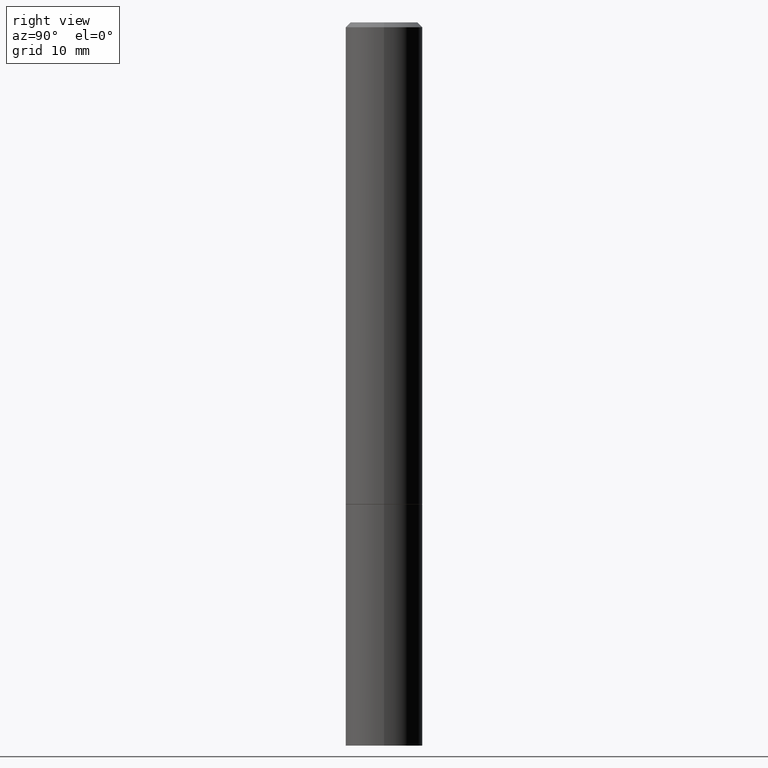
[diagram: clean part render]
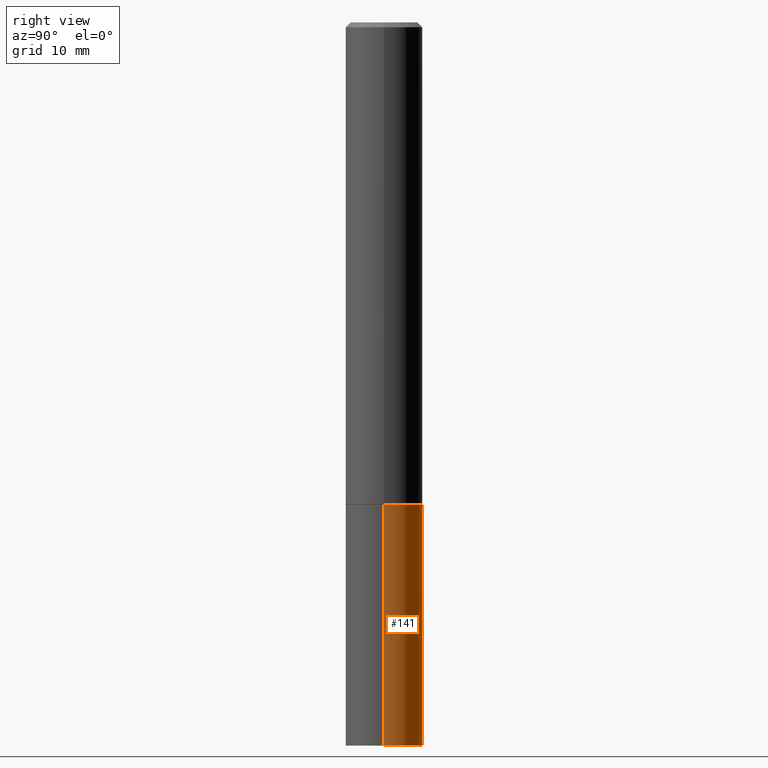
[diagram: same view with one face highlighted and labeled with its STEP entity id]
A machine part, right view. The second image highlights one B-rep face of the part: STEP entity #141.
In plain terms, the highlighted cylindrical surface (partial cylindrical patch) has radius 4.0005 mm, axis along (-0, 0, 1).
Its self-contained STEP definition (entity closure, byte-faithful):
#6 = CARTESIAN_POINT ( 'NONE',  ( 4.813905344975440714E-29, -6.872981015512730918E-15, -1.968499999999999694 ) ) ;
#10 = CARTESIAN_POINT ( 'NONE',  ( 7.220980290903470182E-29, -1.030964609733603853E-14, -2.952799999999999869 ) ) ;
#18 = EDGE_CURVE ( 'NONE', #97, #140, #229, .T. ) ;
#27 = EDGE_CURVE ( 'NONE', #330, #140, #115, .T. ) ;
#34 = CYLINDRICAL_SURFACE ( 'NONE', #288, 0.1575000000000000011 ) ;
#69 = ORIENTED_EDGE ( 'NONE', *, *, #27, .F. ) ;
#71 = LINE ( 'NONE', #148, #335 ) ;
#86 = AXIS2_PLACEMENT_3D ( 'NONE', #6, #253, #282 ) ;
#91 = CIRCLE ( 'NONE', #235, 0.1575000000000000011 ) ;
#93 = EDGE_CURVE ( 'NONE', #159, #330, #71, .T. ) ;
#97 = VERTEX_POINT ( 'NONE', #350 ) ;
#115 = CIRCLE ( 'NONE', #86, 0.1575000000000000011 ) ;
#140 = VERTEX_POINT ( 'NONE', #300 ) ;
#141 = ADVANCED_FACE ( 'NONE', ( #153 ), #34, .T. ) ;
#148 = CARTESIAN_POINT ( 'NONE',  ( 0.1575000000000000011, -1.099816621735586889E-15, 7.679978421878598033E-30 ) ) ;
#153 = FACE_OUTER_BOUND ( 'NONE', #348, .T. ) ;
#159 = VERTEX_POINT ( 'NONE', #303 ) ;
#203 = ORIENTED_EDGE ( 'NONE', *, *, #361, .T. ) ;
#206 = DIRECTION ( 'NONE',  ( -2.445468806185136597E-29, 3.491481338843145583E-15, 1.000000000000000000 ) ) ;
#217 = VECTOR ( 'NONE', #254, 39.37007874015748143 ) ;
#229 = LINE ( 'NONE', #318, #217 ) ;
#232 = DIRECTION ( 'NONE',  ( -2.445468806185136597E-29, 3.491481338843145583E-15, 1.000000000000000000 ) ) ;
#235 = AXIS2_PLACEMENT_3D ( 'NONE', #10, #206, #331 ) ;
#241 = DIRECTION ( 'NONE',  ( 1.000000000000000000, -6.982962677686265922E-15, 4.876176775795935232E-29 ) ) ;
#253 = DIRECTION ( 'NONE',  ( -2.445468806185136597E-29, 3.491481338843145583E-15, 1.000000000000000000 ) ) ;
#254 = DIRECTION ( 'NONE',  ( -2.445468806185136877E-29, 3.491481338843145188E-15, 1.000000000000000000 ) ) ;
#265 = ORIENTED_EDGE ( 'NONE', *, *, #93, .F. ) ;
#271 = ORIENTED_EDGE ( 'NONE', *, *, #18, .T. ) ;
#282 = DIRECTION ( 'NONE',  ( 1.000000000000000000, -6.982962677686268288E-15, 0.000000000000000000 ) ) ;
#288 = AXIS2_PLACEMENT_3D ( 'NONE', #359, #232, #241 ) ;
#300 = CARTESIAN_POINT ( 'NONE',  ( -0.1575000000000000011, -7.472208747602227514E-15, -1.968499999999999694 ) ) ;
#303 = CARTESIAN_POINT ( 'NONE',  ( 0.1575000000000000011, -1.140946271907162522E-14, -2.952799999999999869 ) ) ;
#318 = CARTESIAN_POINT ( 'NONE',  ( -0.1575000000000000011, 1.119104808822157801E-15, -7.747322767151475583E-30 ) ) ;
#330 = VERTEX_POINT ( 'NONE', #339 ) ;
#331 = DIRECTION ( 'NONE',  ( 1.000000000000000000, -6.982962677686261977E-15, 0.000000000000000000 ) ) ;
#335 = VECTOR ( 'NONE', #354, 39.37007874015748143 ) ;
#339 = CARTESIAN_POINT ( 'NONE',  ( 0.1575000000000000011, -7.972797637248318399E-15, -1.968499999999999694 ) ) ;
#348 = EDGE_LOOP ( 'NONE', ( #203, #271, #69, #265 ) ) ;
#350 = CARTESIAN_POINT ( 'NONE',  ( -0.1575000000000000011, -7.472208747602227514E-15, -2.952799999999999869 ) ) ;
#354 = DIRECTION ( 'NONE',  ( -2.445468806185136877E-29, 3.491481338843145188E-15, 1.000000000000000000 ) ) ;
#359 = CARTESIAN_POINT ( 'NONE',  ( 0.000000000000000000, 0.000000000000000000, 0.000000000000000000 ) ) ;
#361 = EDGE_CURVE ( 'NONE', #159, #97, #91, .T. ) ;